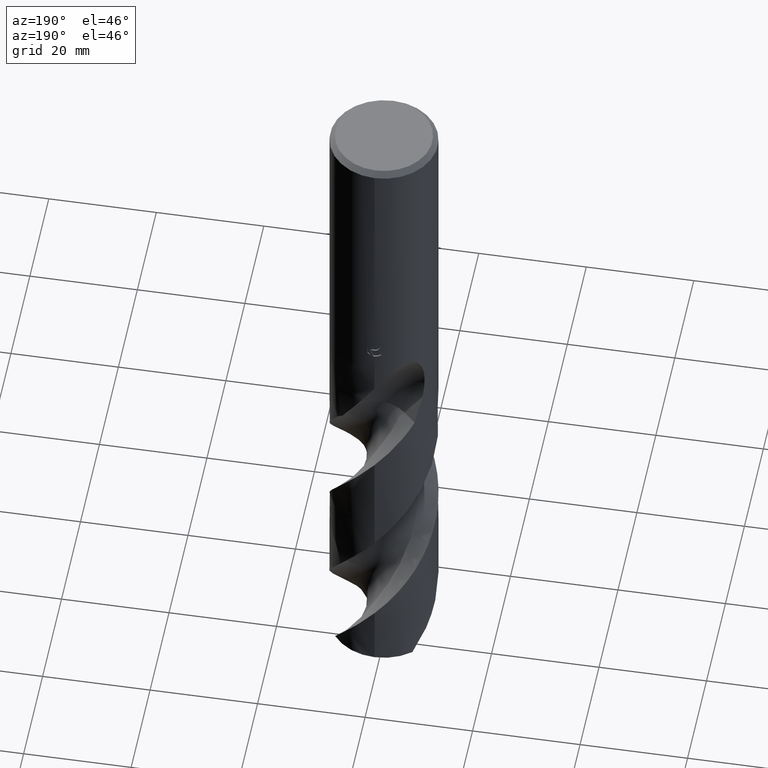
[diagram: clean part render]
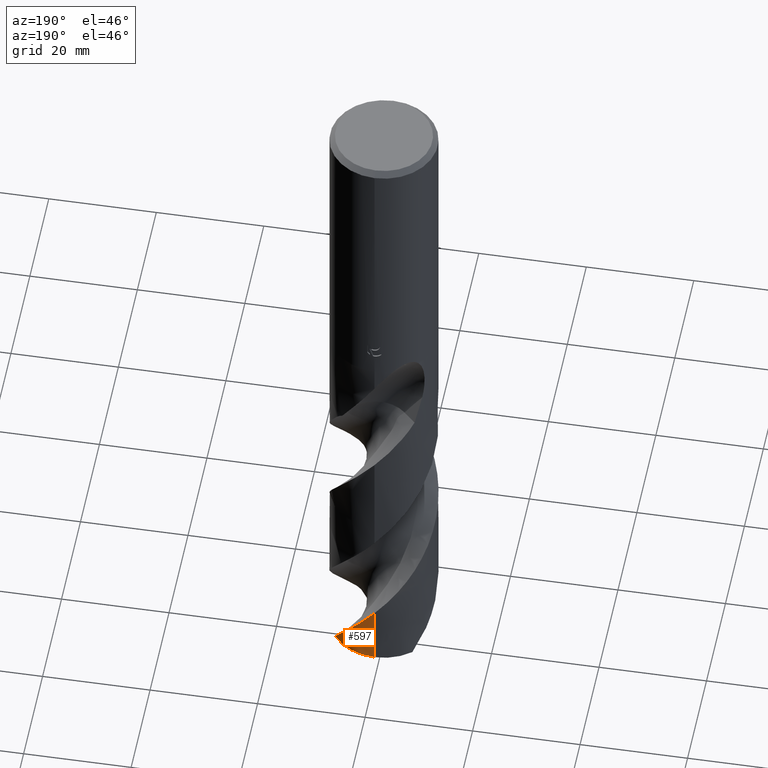
[diagram: same view with one face highlighted and labeled with its STEP entity id]
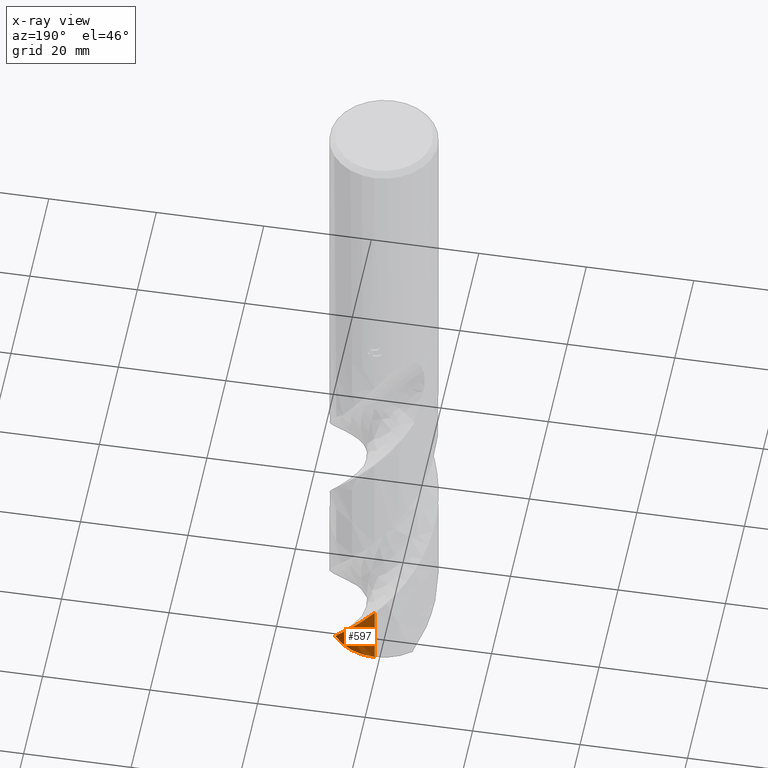
[diagram: x-ray of the same camera — body ghosted, the highlighted face saturated]
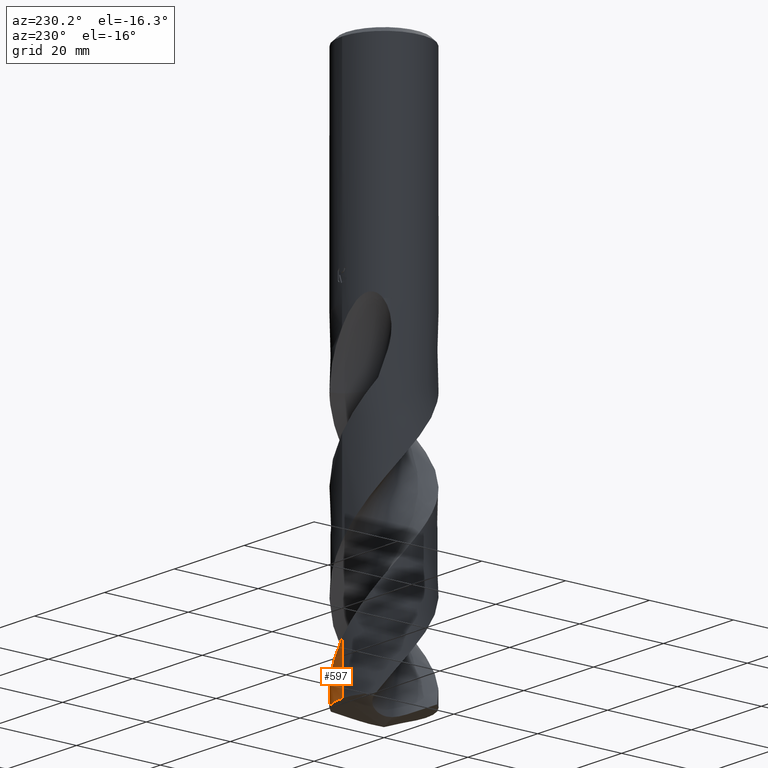
[diagram: same view with one face highlighted and labeled with its STEP entity id]
A machine part, auxiliary view. The second image highlights one B-rep face of the part: STEP entity #597.
The next image is the same camera in x-ray: the body ghosted, the highlighted face saturated — about 0% of this face is hidden behind the body in this view.
A second angle (auxiliary view) of the same face is appended — the face is thin or edge-on in the first view.
In plain terms, the highlighted conical surface has half-angle 0 deg.
Its self-contained STEP definition (entity closure, byte-faithful):
#433=EDGE_CURVE('',#615,#585,#904,.T.);
#475=VERTEX_POINT('',#947);
#531=EDGE_CURVE('',#475,#585,#1008,.T.);
#535=EDGE_CURVE('',#475,#615,#1012,.T.);
#585=VERTEX_POINT('',#1065);
#597=ADVANCED_FACE('',(#1080),#1081,.T.);
#615=VERTEX_POINT('',#1100);
#904=CIRCLE('',#3077,10.0);
#947=CARTESIAN_POINT('',(2.05225057015257E-015,9.99998460137085,-115.75584489148));
#1008=B_SPLINE_CURVE_WITH_KNOTS('',3,(#3713,#3714,#3715,#3716,#3717,#3718,#3719,#3720,#3721,#3722,#3723,#3724,#3725,#3726,#3727,#3728,#3729,#3730,#3731,#3732,#3733,#3734,#3735,#3736,#3737,#3738,#3739,#3740,#3741,#3742,#3743,#3744,#3745,#3746,#3747,#3748,#3749,#3750,#3751,#3752,#3753,#3754,#3755,#3756,#3757,#3758,#3759,#3760,#3761,#3762,#3763,#3764,#3765,#3766,#3767,#3768,#3769,#3770,#3771,#3772,#3773,#3774,#3775,#3776,#3777,#3778,#3779,#3780,#3781,#3782,#3783,#3784,#3785,#3786,#3787,#3788,#3789,#3790,#3791,#3792,#3793,#3794,#3795,#3796,#3797,#3798,#3799,#3800,#3801,#3802,#3803,#3804,#3805,#3806),.UNSPECIFIED.,.F.,.F.,(4,2,2,2,2,2,2,2,2,2,2,2,2,2,2,2,2,2,2,2,2,2,2,2,2,2,2,2,2,2,2,2,2,2,2,2,2,2,2,2,2,2,2,2,2,2,4),(0.0,0.245189714686137,0.6198069740131,1.61410863201688,1.99983501323209,2.25905782693496,2.51206865555544,2.93972724412796,3.46358339691825,4.2248642811972,4.95648885570448,6.19320706034342,6.58149060093244,9.26436553136393,11.3031236955126,14.4880687737373,15.7102857219913,18.1528929593855,19.3836956176484,21.8224498703746,24.2763247446489,26.723621235269,29.1755935563908,31.6275561210472,34.07701767221,36.5334778140359,38.9806614643913,40.2100754367975,41.4250255356435,43.8690684822928,45.0990380407961,46.3181794062362,48.7593737046021,49.9896383405279,52.4271954940162,54.8812068582588,57.3249314680083,59.7766046714034,61.8976178964508,65.6010818575001,66.9940257141373,69.4397185412861,70.3580485187293,71.9641503313468,74.3760397664292,75.5817410566383,76.7878755449738),.UNSPECIFIED.);
#1012=LINE('',#3811,#3812);
#1065=CARTESIAN_POINT('',(8.03648954279249,5.95103653396507,-127.360297657338));
#1080=FACE_OUTER_BOUND('',#4870,.T.);
#1081=CONICAL_SURFACE('',#4871,9.99995,1.32695866534931E-006);
#1100=CARTESIAN_POINT('',(-1.22457126362152E-015,10.0,-127.360297657338));
#3077=AXIS2_PLACEMENT_3D('',#5544,#5545,#5546);
#3713=CARTESIAN_POINT('',(6.95071689994662,-7.18929314941194,-67.125));
#3714=CARTESIAN_POINT('',(6.91542676468752,-7.22341230432376,-67.1903472797881));
#3715=CARTESIAN_POINT('',(6.87983616574976,-7.2573196202226,-67.2556671590033));
#3716=CARTESIAN_POINT('',(6.7890022409996,-7.34258317628931,-67.4206161697279));
#3717=CARTESIAN_POINT('',(6.73338936534004,-7.39362301535151,-67.5199926686623));
#3718=CARTESIAN_POINT('',(6.52654132844895,-7.57914311116936,-67.8827209058262));
#3719=CARTESIAN_POINT('',(6.37303751737425,-7.70882295783798,-68.1386436852246));
#3720=CARTESIAN_POINT('',(6.1471159037275,-7.88783207117327,-68.4969302810754));
#3721=CARTESIAN_POINT('',(6.0831822352579,-7.93725022697438,-68.5964727526612));
#3722=CARTESIAN_POINT('',(5.97464383896714,-8.01904356782231,-68.7628143235824));
#3723=CARTESIAN_POINT('',(5.93067786949201,-8.05161569135795,-68.829491536314));
#3724=CARTESIAN_POINT('',(5.84305851392668,-8.11541640731246,-68.9611968083209));
#3725=CARTESIAN_POINT('',(5.7994874234982,-8.14661131003523,-69.0261291430394));
#3726=CARTESIAN_POINT('',(5.68145764159558,-8.22968523806396,-69.2008320790926));
#3727=CARTESIAN_POINT('',(5.60630999596699,-8.28107127786501,-69.3110771530292));
#3728=CARTESIAN_POINT('',(5.43647101466543,-8.39379793046193,-69.5586493423897));
#3729=CARTESIAN_POINT('',(5.34216613728219,-8.45412319080527,-69.6950235588217));
#3730=CARTESIAN_POINT('',(5.10897462302021,-8.59785951637597,-70.0305540273144));
#3731=CARTESIAN_POINT('',(4.97052150177573,-8.67859899282644,-70.2286511638398));
#3732=CARTESIAN_POINT('',(4.69535239422619,-8.83039517265335,-70.6200006426819));
#3733=CARTESIAN_POINT('',(4.55896513403902,-8.9015696481345,-70.8125742460425));
#3734=CARTESIAN_POINT('',(4.18820344643911,-9.08432252762162,-71.3299348024432));
#3735=CARTESIAN_POINT('',(3.95043441100517,-9.19024149732999,-71.6553731169679));
#3736=CARTESIAN_POINT('',(3.63234498655725,-9.31725822228393,-72.081499588104));
#3737=CARTESIAN_POINT('',(3.555971734607,-9.34667243514247,-72.183095291523));
#3738=CARTESIAN_POINT('',(2.9496798885917,-9.57168216932252,-72.98584925086));
#3739=CARTESIAN_POINT('',(2.40443801524195,-9.72297321091038,-73.6845467663887));
#3740=CARTESIAN_POINT('',(1.42765320745381,-9.90679574171289,-74.9196358329038));
#3741=CARTESIAN_POINT('',(1.00150805464463,-9.95888035711133,-75.4537124009734));
#3742=CARTESIAN_POINT('',(-0.094829847064595,-10.0218742983325,-76.820774886379));
#3743=CARTESIAN_POINT('',(-0.765712005616832,-9.99307713691967,-77.6497317236758));
#3744=CARTESIAN_POINT('',(-1.68363948400793,-9.86053869974695,-78.8021178777434));
#3745=CARTESIAN_POINT('',(-1.93660559086774,-9.8139876331698,-79.1215778166864));
#3746=CARTESIAN_POINT('',(-2.68870536149723,-9.64538815250792,-80.0802864591181));
#3747=CARTESIAN_POINT('',(-3.18066709310061,-9.49453457411013,-80.7188758667787));
#3748=CARTESIAN_POINT('',(-3.89988967095272,-9.21176943356934,-81.679706753129));
#3749=CARTESIAN_POINT('',(-4.13714828650697,-9.10768375377343,-82.0014399341293));
#3750=CARTESIAN_POINT('',(-4.83181319441872,-8.7701684746079,-82.9610027166094));
#3751=CARTESIAN_POINT('',(-5.27537037502964,-8.51072313054636,-83.5976748890698));
#3752=CARTESIAN_POINT('',(-6.12110169008951,-7.92447862789392,-84.8776656085687));
#3753=CARTESIAN_POINT('',(-6.52200419043612,-7.59796343016022,-85.5187010620776));
#3754=CARTESIAN_POINT('',(-7.26898332340254,-6.88665916032331,-86.8004381511128));
#3755=CARTESIAN_POINT('',(-7.61385940688033,-6.50331003167078,-87.4392140051587));
#3756=CARTESIAN_POINT('',(-8.24195502133223,-5.68639791975365,-88.7210002597905));
#3757=CARTESIAN_POINT('',(-8.52429966566445,-5.25372202962833,-89.3616499368296));
#3758=CARTESIAN_POINT('',(-9.01980163532856,-4.34838939517647,-90.6441846938658));
#3759=CARTESIAN_POINT('',(-9.23207041283446,-3.87736054329047,-91.283996113385));
#3760=CARTESIAN_POINT('',(-9.58180437701323,-2.90750157792703,-92.5663885951295));
#3761=CARTESIAN_POINT('',(-9.71890830181364,-2.4099068398868,-93.2065287812782));
#3762=CARTESIAN_POINT('',(-9.91547556171757,-1.39632685433278,-94.4897151250936));
#3763=CARTESIAN_POINT('',(-9.97437422535803,-0.882068922514831,-95.1306113779449));
#3764=CARTESIAN_POINT('',(-10.0120958199149,0.148812045761002,-96.4136114302241));
#3765=CARTESIAN_POINT('',(-9.99116847008372,0.664081512236491,-97.0532719449332));
#3766=CARTESIAN_POINT('',(-9.9002095176172,1.43248709594514,-98.0150008998875));
#3767=CARTESIAN_POINT('',(-9.85982951811306,1.68818515078486,-98.3363930024092));
#3768=CARTESIAN_POINT('',(-9.75990031211985,2.19294400367073,-98.9756934486478));
#3769=CARTESIAN_POINT('',(-9.70064094512306,2.44175431347708,-99.2932679288823));
#3770=CARTESIAN_POINT('',(-9.49370842712579,3.18326989782187,-100.250647520562));
#3771=CARTESIAN_POINT('',(-9.31746397297871,3.66725266874855,-100.889655608836));
#3772=CARTESIAN_POINT('',(-8.99768784906364,4.37126348691714,-101.850842549109));
#3773=CARTESIAN_POINT('',(-8.88150804778188,4.60273768796067,-102.172428670045));
#3774=CARTESIAN_POINT('',(-8.63250383236329,5.05421593123131,-102.813033208165));
#3775=CARTESIAN_POINT('',(-8.49997857059905,5.27404420358333,-103.131659889868));
#3776=CARTESIAN_POINT('',(-8.07720941198032,5.91793744094487,-104.089416511432));
#3777=CARTESIAN_POINT('',(-7.76255061069024,6.3250445221159,-104.727836031049));
#3778=CARTESIAN_POINT('',(-7.24434998311845,6.89825071470573,-105.688494934218));
#3779=CARTESIAN_POINT('',(-7.06328337674792,7.08354088780518,-106.010210889066));
#3780=CARTESIAN_POINT('',(-6.50252817733116,7.61445725638917,-106.969703614345));
#3781=CARTESIAN_POINT('',(-6.10337496815433,7.93796686417797,-107.606438542713));
#3782=CARTESIAN_POINT('',(-5.25642022059384,8.52268428344663,-108.886633861566));
#3783=CARTESIAN_POINT('',(-4.80929946333799,8.78277307653942,-109.527888222285));
#3784=CARTESIAN_POINT('',(-3.880516099139,9.23070202298288,-110.809165419415));
#3785=CARTESIAN_POINT('',(-3.40069229840329,9.41802761861542,-111.447300993242));
#3786=CARTESIAN_POINT('',(-2.41521004106365,9.71763702913455,-112.728535421859));
#3787=CARTESIAN_POINT('',(-1.91064437883532,9.82931795802813,-113.369305746618));
#3788=CARTESIAN_POINT('',(-0.957408464300018,9.96405713259914,-114.565622837597));
#3789=CARTESIAN_POINT('',(-0.511693338517306,9.99685264875924,-115.119429549578));
#3790=CARTESIAN_POINT('',(0.71396204383677,10.0048663084566,-116.643827473273));
#3791=CARTESIAN_POINT('',(1.49149373952036,9.91883663203927,-117.610258668264));
#3792=CARTESIAN_POINT('',(2.53708215086357,9.6772424088374,-118.943644307828));
#3793=CARTESIAN_POINT('',(2.81973895850649,9.59868765074986,-119.307852263835));
#3794=CARTESIAN_POINT('',(3.58787754550079,9.34836333384641,-120.312537106785));
#3795=CARTESIAN_POINT('',(4.06434717378465,9.15128907767789,-120.951997363172));
#3796=CARTESIAN_POINT('',(4.69604903364095,8.83087566035089,-121.832250060942));
#3797=CARTESIAN_POINT('',(4.86593828911359,8.73841560641178,-122.072460123856));
#3798=CARTESIAN_POINT('',(5.32533422040068,8.47083824208389,-122.732933009842));
#3799=CARTESIAN_POINT('',(5.60866242456028,8.28595493045552,-123.152600802711));
#3800=CARTESIAN_POINT('',(6.29252496385389,7.78856237675605,-124.204455809236));
#3801=CARTESIAN_POINT('',(6.67975224084636,7.45912868586188,-124.835600516296));
#3802=CARTESIAN_POINT('',(7.22054476568974,6.92301269984878,-125.782598382424));
#3803=CARTESIAN_POINT('',(7.39395753841534,6.73749440332855,-126.098035830976));
#3804=CARTESIAN_POINT('',(7.72641858962307,6.3534996482684,-126.729206814581));
#3805=CARTESIAN_POINT('',(7.88531216166962,6.15519109551588,-127.044678479187));
#3806=CARTESIAN_POINT('',(8.03648954279246,5.95103653396509,-127.360297657338));
#3811=CARTESIAN_POINT('',(-1.22456514058975E-015,9.99995,-89.680148828669));
#3812=VECTOR('',#5625,1.0);
#4870=EDGE_LOOP('',(#5727,#5728,#5729));
#4871=AXIS2_PLACEMENT_3D('',#5730,#5731,#5732);
#5544=CARTESIAN_POINT('',(0.0,0.0,-127.360297657338));
#5545=DIRECTION('',(0.0,0.0,-1.0));
#5546=DIRECTION('',(0.0,1.0,0.0));
#5625=DIRECTION('',(-1.62500201284595E-022,1.32695866534892E-006,-0.99999999999912));
#5727=ORIENTED_EDGE('',*,*,#535,.F.);
#5728=ORIENTED_EDGE('',*,*,#531,.T.);
#5729=ORIENTED_EDGE('',*,*,#433,.F.);
#5730=CARTESIAN_POINT('',(0.0,0.0,-89.680148828669));
#5731=DIRECTION('',(0.0,-0.0,-1.0));
#5732=DIRECTION('',(0.0,1.0,0.0));